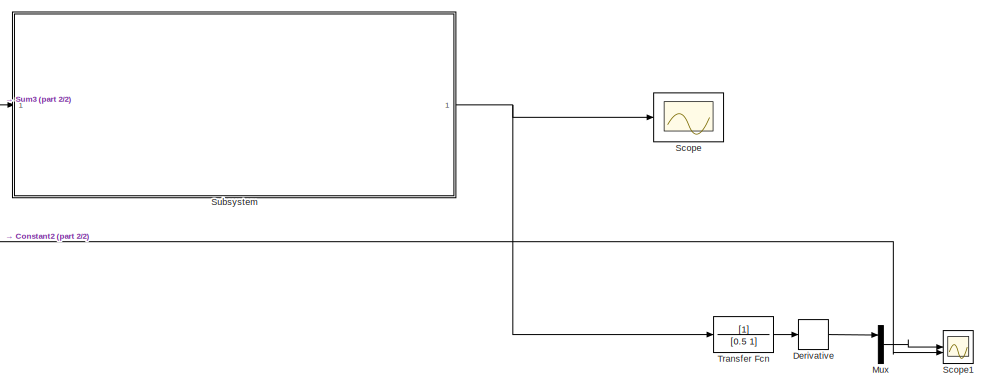
[diagram: root canvas - part 1/2, right side, full height]
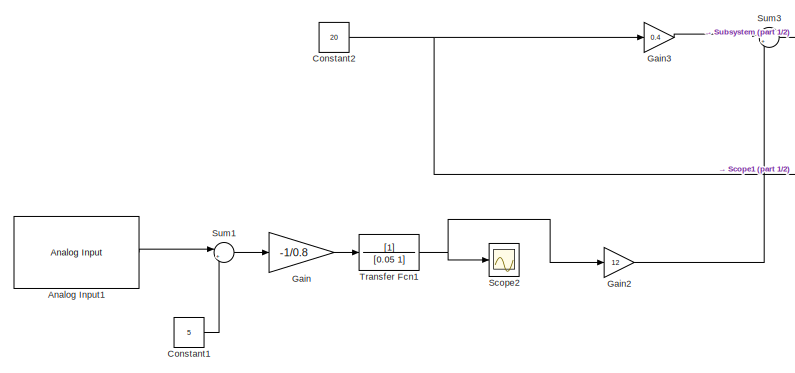
[diagram: root canvas - part 2/2, left side, full height]
MODEL slx_08f0411a0f3f
KIND model
CONFIG AbsTol = auto
CONFIG EnableMultiTasking = off
CONFIG FixedStep = auto
CONFIG MaxStep = auto
CONFIG MinStep = auto
CONFIG RelTol = 1e-3
CONFIG SampleTimeConstraint = Unconstrained
CONFIG SolverName = ode5
CONFIG StartTime = 0.0
CONFIG StopTime = 10.0
BLOCK [Reference] Analog Input1  REF=sldrtlib/Analog Input
  AttributesFormatString = Humusoft\nMF634 [auto]
  SourceBlock = sldrtlib/Analog Input
  SourceType = Simulink Desktop Real-Time Analog Input
BLOCK [Constant] Constant1
  Value = 5
BLOCK [Constant] Constant2
  Value = 20
BLOCK [Derivative] Derivative
BLOCK [Gain] Gain
  Gain = -1/0.8
BLOCK [Gain] Gain2
  Gain = 12
BLOCK [Gain] Gain3
  Gain = 0.4
BLOCK [Mux] Mux
  DisplayOption = bar
  Inputs = 3
BLOCK [Scope] Scope
  Floating = off
  NumInputPorts = 2
  ScopeSpecificationString = Simulink.scopes.TimeScopeBlockCfg('CurrentConfiguration', extmgr.ConfigurationSet(extmgr.Configuration('Core','General UI',true),extmgr.Configuration('Core','Source UI',true),extmgr.Configuration('Sources','WiredSimulink',true),extmgr.Configuration('Visuals','Time Domain',true,'SerializedDisplays',{struct('MinYLimReal','-21.73561','MaxYLimReal','195.62045','YLabelReal','','MinYLimMag','0.00000','M...<+1472ch>
BLOCK [Scope] Scope1
  Floating = off
  NumInputPorts = 2
  ScopeSpecificationString = Simulink.scopes.TimeScopeBlockCfg('CurrentConfiguration', extmgr.ConfigurationSet(extmgr.Configuration('Core','General UI',true),extmgr.Configuration('Core','Source UI',true),extmgr.Configuration('Sources','WiredSimulink',true,'DataLoggingVariableName','ScopeData1'),extmgr.Configuration('Visuals','Time Domain',true,'SerializedDisplays',{struct('MinYLimReal','-3.44467','MaxYLimReal','31.00199','YLa...<+1572ch>
BLOCK [Scope] Scope2
  Floating = off
  NumInputPorts = 2
  ScopeSpecificationString = Simulink.scopes.TimeScopeBlockCfg('CurrentConfiguration', extmgr.ConfigurationSet(extmgr.Configuration('Core','General UI',true),extmgr.Configuration('Core','Source UI',true),extmgr.Configuration('Sources','WiredSimulink',true,'DataLoggingVariableName','ScopeData1'),extmgr.Configuration('Visuals','Time Domain',true,'SerializedDisplays',{struct('MinYLimReal','-0.03167','MaxYLimReal','0.12075','YLab...<+1518ch>
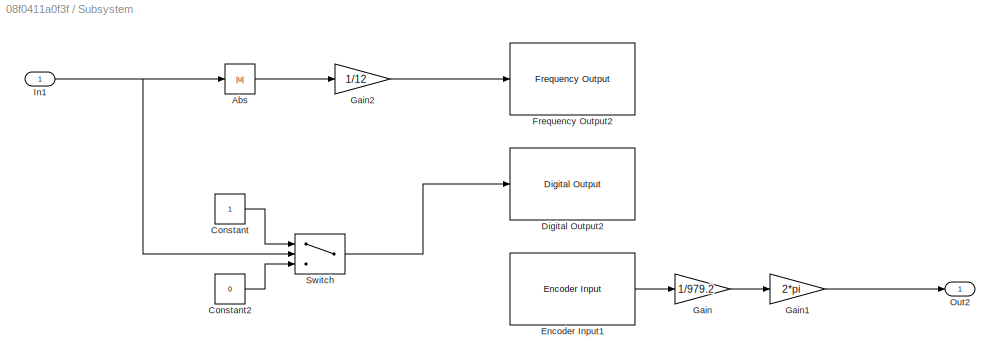
BLOCK [SubSystem] Subsystem
BLOCK [Abs] Subsystem/Abs
  SaturateOnIntegerOverflow = off
BLOCK [Constant] Subsystem/Constant
BLOCK [Constant] Subsystem/Constant2
  Value = 0
BLOCK [Reference] Subsystem/Digital Output2  REF=sldrtlib/Digital Output
  AttributesFormatString = Humusoft\nMF634 [auto]
  SourceBlock = sldrtlib/Digital Output
  SourceType = Simulink Desktop Real-Time Digital Output
BLOCK [Reference] Subsystem/Encoder Input1  REF=sldrtlib/Encoder Input
  AttributesFormatString = Humusoft\nMF634 [auto]
  SourceBlock = sldrtlib/Encoder Input
  SourceType = Simulink Desktop Real-Time Encoder Input
BLOCK [Reference] Subsystem/Frequency Output2  REF=sldrtlib/Frequency Output
  AttributesFormatString = Humusoft\nMF634 [auto]
  SourceBlock = sldrtlib/Frequency Output
  SourceType = Simulink Desktop Real-Time Frequency Output
BLOCK [Gain] Subsystem/Gain
  Gain = 1/979.2
BLOCK [Gain] Subsystem/Gain1
  Gain = 2*pi
BLOCK [Gain] Subsystem/Gain2
  Gain = 1/12
BLOCK [Inport] Subsystem/In1
BLOCK [Outport] Subsystem/Out2
BLOCK [Switch] Subsystem/Switch
  Criteria = u2 > Threshold
  InputSameDT = off
  SaturateOnIntegerOverflow = off
BLOCK [Sum] Sum1
  Inputs = |+-
BLOCK [Sum] Sum3
  Inputs = |++
BLOCK [TransferFcn] Transfer Fcn
  Denominator = [0.5 1]
BLOCK [TransferFcn] Transfer Fcn1
  Denominator = [0.05 1]
LINE Analog Input1:1 -> Sum1:1
LINE Constant1:1 -> Sum1:2
NET Constant2:1 -> Gain3:1, Scope1:2
LINE Derivative:1 -> Mux:1
LINE Gain2:1 -> Sum3:2
LINE Gain3:1 -> Sum3:1
LINE Gain:1 -> Transfer Fcn1:1
LINE Mux:1 -> Scope1:1
LINE Subsystem/Abs:1 -> Subsystem/Gain2:1
LINE Subsystem/Constant2:1 -> Subsystem/Switch:3
LINE Subsystem/Constant:1 -> Subsystem/Switch:1
LINE Subsystem/Encoder Input1:1 -> Subsystem/Gain:1
LINE Subsystem/Gain1:1 -> Subsystem/Out2:1
LINE Subsystem/Gain2:1 -> Subsystem/Frequency Output2:1
LINE Subsystem/Gain:1 -> Subsystem/Gain1:1
NET Subsystem/In1:1 -> Subsystem/Abs:1, Subsystem/Switch:2
LINE Subsystem/Switch:1 -> Subsystem/Digital Output2:1
NET Subsystem:1 -> Scope:1, Transfer Fcn:1
LINE Sum1:1 -> Gain:1
LINE Sum3:1 -> Subsystem:1
NET Transfer Fcn1:1 -> Gain2:1, Scope2:1
LINE Transfer Fcn:1 -> Derivative:1
note: NET lines group one-source signal fan-out (src -> all destinations, sorted); 1:1 wires keep LINE
